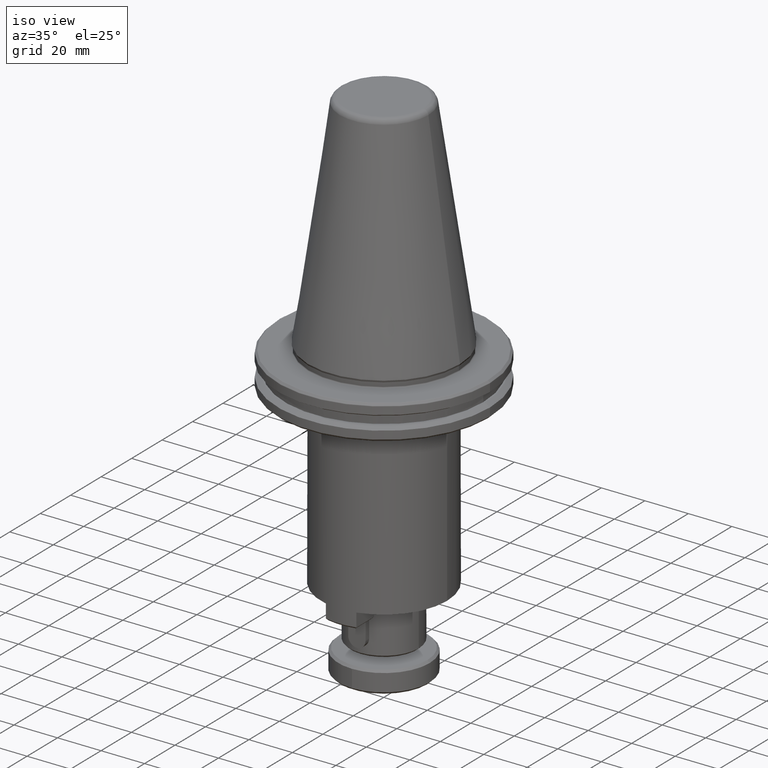
[diagram: clean part render]
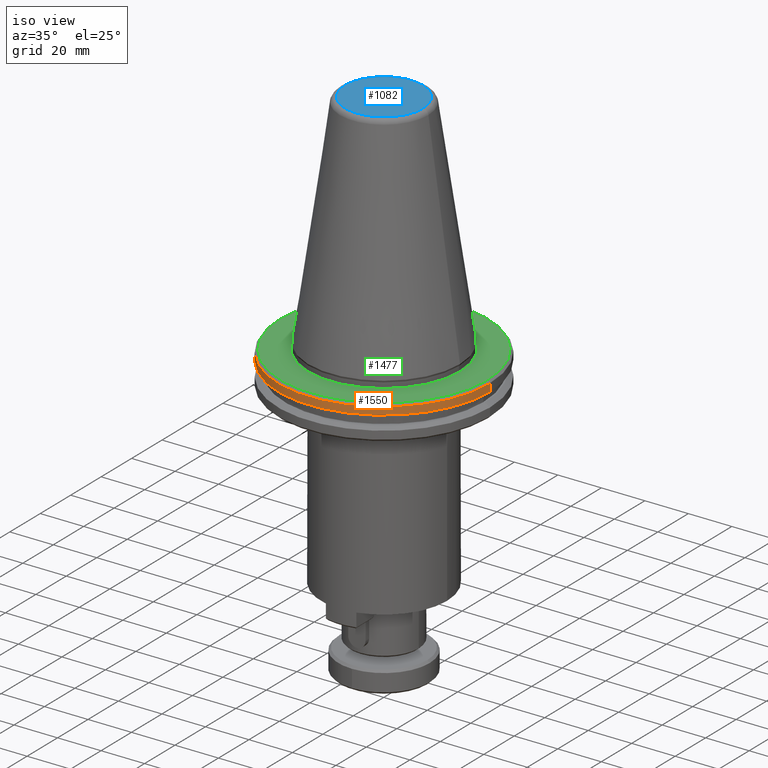
[diagram: same view with three faces highlighted in distinct colors, each labeled with its STEP entity id]
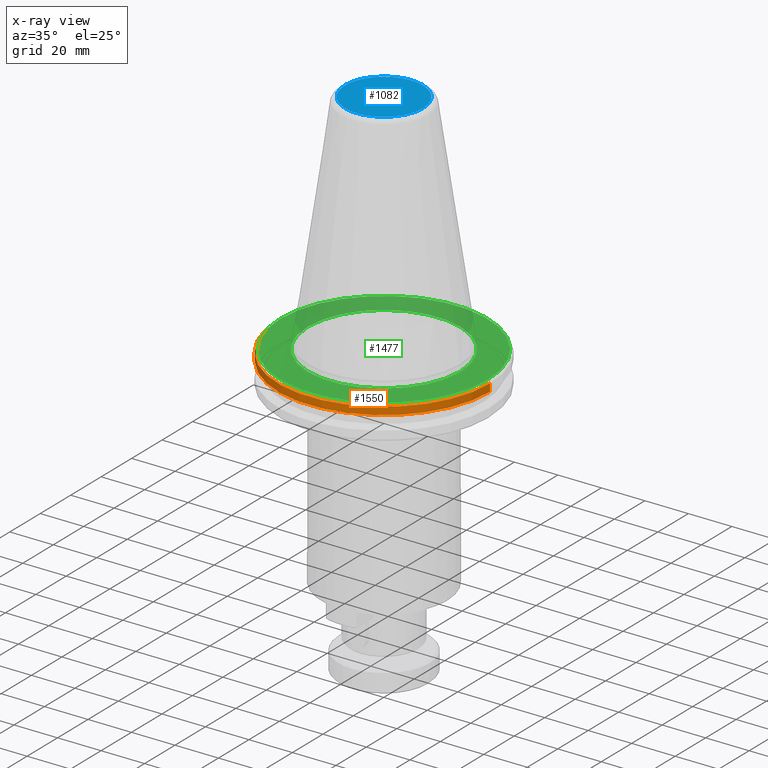
[diagram: x-ray of the same camera — body ghosted, the three highlighted faces saturated]
A machine part, iso view with three faces highlighted in distinct colors.
The next image is the same camera in x-ray (body ghosted, the three faces saturated) — at least one of them is partly hidden behind the body in this view.
Their STEP definitions:

[orange] entity #1550 — the highlighted cylindrical surface (partial cylindrical patch) has radius 48.75 mm, axis along (-0, -0, 1).
#41 = EDGE_CURVE ( 'NONE', #2528, #1391, #630, .T. ) ;
#66 = ORIENTED_EDGE ( 'NONE', *, *, #1876, .F. ) ;
#150 = DIRECTION ( 'NONE',  ( 1.000000000000000000, 0.0000000000000000000, 0.0000000000000000000 ) ) ;
#210 = DIRECTION ( 'NONE',  ( -0.0000000000000000000, -0.0000000000000000000, 1.000000000000000000 ) ) ;
#216 = CARTESIAN_POINT ( 'NONE',  ( 91.78900745422477300, 111.8872747687010000, 199.7495027782804000 ) ) ;
#244 = ORIENTED_EDGE ( 'NONE', *, *, #1423, .T. ) ;
#315 = VECTOR ( 'NONE', #1933, 1000.000000000000000 ) ;
#333 = DIRECTION ( 'NONE',  ( -0.0000000000000000000, -0.0000000000000000000, 1.000000000000000000 ) ) ;
#344 = LINE ( 'NONE', #1815, #315 ) ;
#461 = CARTESIAN_POINT ( 'NONE',  ( 91.78900745422477300, 111.8872747687010000, 93.63381735169856800 ) ) ;
#526 = CARTESIAN_POINT ( 'NONE',  ( 43.03900745430997400, 111.8872747687010000, 93.63381735169856800 ) ) ;
#585 = VERTEX_POINT ( 'NONE', #883 ) ;
#589 = AXIS2_PLACEMENT_3D ( 'NONE', #216, #210, #150 ) ;
#630 = CIRCLE ( 'NONE', #2257, 48.74999999999998600 ) ;
#709 = CARTESIAN_POINT ( 'NONE',  ( 140.5390074541821800, 111.8872747687010000, 199.7495027782804000 ) ) ;
#852 = CARTESIAN_POINT ( 'NONE',  ( 43.03900745422478700, 111.8872747687010000, 90.14709804367184600 ) ) ;
#858 = EDGE_LOOP ( 'NONE', ( #1706, #1395, #244, #66 ) ) ;
#883 = CARTESIAN_POINT ( 'NONE',  ( 140.5390074541395800, 111.8872747687010000, 93.63381735169856800 ) ) ;
#927 = VERTEX_POINT ( 'NONE', #526 ) ;
#971 = AXIS2_PLACEMENT_3D ( 'NONE', #461, #333, #1521 ) ;
#1391 = VERTEX_POINT ( 'NONE', #2573 ) ;
#1395 = ORIENTED_EDGE ( 'NONE', *, *, #41, .T. ) ;
#1423 = EDGE_CURVE ( 'NONE', #1391, #585, #2169, .T. ) ;
#1521 = DIRECTION ( 'NONE',  ( 1.000000000000000000, 0.0000000000000000000, 0.0000000000000000000 ) ) ;
#1550 = ADVANCED_FACE ( 'NONE', ( #1976 ), #1923, .T. ) ;
#1595 = CIRCLE ( 'NONE', #971, 48.74999999991480600 ) ;
#1706 = ORIENTED_EDGE ( 'NONE', *, *, #2658, .F. ) ;
#1811 = CARTESIAN_POINT ( 'NONE',  ( 91.78900745422477300, 111.8872747687010000, 90.14709804367184600 ) ) ;
#1815 = CARTESIAN_POINT ( 'NONE',  ( 43.03900745426737700, 111.8872747687010000, 199.7495027782804000 ) ) ;
#1828 = DIRECTION ( 'NONE',  ( -0.0000000000000000000, -0.0000000000000000000, 1.000000000000000000 ) ) ;
#1834 = DIRECTION ( 'NONE',  ( 1.000000000000000000, 0.0000000000000000000, 0.0000000000000000000 ) ) ;
#1876 = EDGE_CURVE ( 'NONE', #927, #585, #1595, .T. ) ;
#1923 = CYLINDRICAL_SURFACE ( 'NONE', #589, 48.74999999995741000 ) ;
#1933 = DIRECTION ( 'NONE',  ( -0.0000000000000000000, -0.0000000000000000000, 1.000000000000000000 ) ) ;
#1976 = FACE_OUTER_BOUND ( 'NONE', #858, .T. ) ;
#2162 = VECTOR ( 'NONE', #2644, 1000.000000000000000 ) ;
#2169 = LINE ( 'NONE', #709, #2162 ) ;
#2257 = AXIS2_PLACEMENT_3D ( 'NONE', #1811, #1828, #1834 ) ;
#2528 = VERTEX_POINT ( 'NONE', #852 ) ;
#2573 = CARTESIAN_POINT ( 'NONE',  ( 140.5390074542247600, 111.8872747687010000, 90.14709804367184600 ) ) ;
#2644 = DIRECTION ( 'NONE',  ( -0.0000000000000000000, -0.0000000000000000000, 1.000000000000000000 ) ) ;
#2658 = EDGE_CURVE ( 'NONE', #2528, #927, #344, .T. ) ;

[blue] entity #1082 — the highlighted planar face has unit normal (0, 0, -1).
#156 = DIRECTION ( 'NONE',  ( -1.000000000000000000, 0.0000000000000000000, -0.0000000000000000000 ) ) ;
#336 = CARTESIAN_POINT ( 'NONE',  ( 79.11442334026642700, 124.5618588826593100, 199.7495027773960600 ) ) ;
#339 = EDGE_CURVE ( 'NONE', #2079, #817, #426, .T. ) ;
#363 = CARTESIAN_POINT ( 'NONE',  ( 73.86443870282634800, 111.8872747687010000, 199.7495027765116900 ) ) ;
#426 = CIRCLE ( 'NONE', #931, 17.92456875139843200 ) ;
#653 = EDGE_LOOP ( 'NONE', ( #1063, #2086 ) ) ;
#817 = VERTEX_POINT ( 'NONE', #1941 ) ;
#835 = DIRECTION ( 'NONE',  ( 0.0000000000000000000, 0.0000000000000000000, -1.000000000000000000 ) ) ;
#931 = AXIS2_PLACEMENT_3D ( 'NONE', #1835, #1895, #1770 ) ;
#1063 = ORIENTED_EDGE ( 'NONE', *, *, #1984, .T. ) ;
#1082 = ADVANCED_FACE ( 'NONE', ( #2580 ), #1519, .F. ) ;
#1335 = AXIS2_PLACEMENT_3D ( 'NONE', #336, #835, #156 ) ;
#1519 = PLANE ( 'NONE',  #1335 ) ;
#1535 = CIRCLE ( 'NONE', #2197, 17.92456875139843200 ) ;
#1770 = DIRECTION ( 'NONE',  ( 1.000000000000000000, 0.0000000000000000000, 0.0000000000000000000 ) ) ;
#1835 = CARTESIAN_POINT ( 'NONE',  ( 91.78900745422477300, 111.8872747687010000, 199.7495027765116900 ) ) ;
#1840 = DIRECTION ( 'NONE',  ( -0.0000000000000000000, -0.0000000000000000000, 1.000000000000000000 ) ) ;
#1847 = DIRECTION ( 'NONE',  ( 1.000000000000000000, 0.0000000000000000000, 0.0000000000000000000 ) ) ;
#1895 = DIRECTION ( 'NONE',  ( -0.0000000000000000000, -0.0000000000000000000, 1.000000000000000000 ) ) ;
#1941 = CARTESIAN_POINT ( 'NONE',  ( 109.7135762056232100, 111.8872747687010000, 199.7495027765116900 ) ) ;
#1984 = EDGE_CURVE ( 'NONE', #817, #2079, #1535, .T. ) ;
#2035 = CARTESIAN_POINT ( 'NONE',  ( 91.78900745422477300, 111.8872747687010000, 199.7495027765116900 ) ) ;
#2079 = VERTEX_POINT ( 'NONE', #363 ) ;
#2086 = ORIENTED_EDGE ( 'NONE', *, *, #339, .T. ) ;
#2197 = AXIS2_PLACEMENT_3D ( 'NONE', #2035, #1840, #1847 ) ;
#2580 = FACE_OUTER_BOUND ( 'NONE', #653, .T. ) ;

[green] entity #1477 — the highlighted planar face has unit normal (0, 0, -1).
#42 = CARTESIAN_POINT ( 'NONE',  ( 139.3733598465254000, 111.8872747687010000, 94.79950277680299600 ) ) ;
#108 = AXIS2_PLACEMENT_3D ( 'NONE', #324, #443, #246 ) ;
#222 = CARTESIAN_POINT ( 'NONE',  ( 91.78900745422477300, 111.8872747687010000, 94.79950277680299600 ) ) ;
#225 = DIRECTION ( 'NONE',  ( 0.0000000000000000000, 0.0000000000000000000, -1.000000000000000000 ) ) ;
#246 = DIRECTION ( 'NONE',  ( 1.000000000000000000, 0.0000000000000000000, 0.0000000000000000000 ) ) ;
#324 = CARTESIAN_POINT ( 'NONE',  ( 91.78900745422477300, 111.8872747687010000, 94.79950277680299600 ) ) ;
#443 = DIRECTION ( 'NONE',  ( -0.0000000000000000000, -0.0000000000000000000, 1.000000000000000000 ) ) ;
#447 = AXIS2_PLACEMENT_3D ( 'NONE', #559, #569, #2291 ) ;
#559 = CARTESIAN_POINT ( 'NONE',  ( 91.78900745422477300, 111.8872747687010000, 94.79950277828039900 ) ) ;
#569 = DIRECTION ( 'NONE',  ( -0.0000000000000000000, -0.0000000000000000000, 1.000000000000000000 ) ) ;
#674 = VERTEX_POINT ( 'NONE', #42 ) ;
#872 = DIRECTION ( 'NONE',  ( 1.000000000000000000, 0.0000000000000000000, 0.0000000000000000000 ) ) ;
#952 = CIRCLE ( 'NONE', #2470, 35.00019493371400600 ) ;
#1031 = ORIENTED_EDGE ( 'NONE', *, *, #1557, .F. ) ;
#1109 = EDGE_CURVE ( 'NONE', #1989, #674, #2551, .T. ) ;
#1136 = CARTESIAN_POINT ( 'NONE',  ( 126.7892023879387900, 111.8872747687010000, 94.79950277828039900 ) ) ;
#1256 = DIRECTION ( 'NONE',  ( -0.0000000000000000000, -0.0000000000000000000, 1.000000000000000000 ) ) ;
#1297 = DIRECTION ( 'NONE',  ( 1.000000000000000000, 0.0000000000000000000, 0.0000000000000000000 ) ) ;
#1433 = EDGE_LOOP ( 'NONE', ( #1448, #1031 ) ) ;
#1448 = ORIENTED_EDGE ( 'NONE', *, *, #2278, .F. ) ;
#1467 = AXIS2_PLACEMENT_3D ( 'NONE', #222, #2179, #872 ) ;
#1477 = ADVANCED_FACE ( 'NONE', ( #2069, #2074 ), #2491, .F. ) ;
#1557 = EDGE_CURVE ( 'NONE', #2377, #2262, #1946, .T. ) ;
#1651 = CARTESIAN_POINT ( 'NONE',  ( 91.78900745422477300, 111.8872747687010000, 94.79950277828039900 ) ) ;
#1696 = CIRCLE ( 'NONE', #108, 47.58435239230063000 ) ;
#1768 = AXIS2_PLACEMENT_3D ( 'NONE', #2090, #225, #1848 ) ;
#1769 = EDGE_CURVE ( 'NONE', #674, #1989, #1696, .T. ) ;
#1838 = CARTESIAN_POINT ( 'NONE',  ( 56.78881252051075300, 111.8872747687014500, 94.79950277828039900 ) ) ;
#1848 = DIRECTION ( 'NONE',  ( -1.000000000000000000, 0.0000000000000000000, -0.0000000000000000000 ) ) ;
#1946 = CIRCLE ( 'NONE', #447, 35.00019493371400600 ) ;
#1989 = VERTEX_POINT ( 'NONE', #2258 ) ;
#2069 = FACE_OUTER_BOUND ( 'NONE', #2422, .T. ) ;
#2074 = FACE_BOUND ( 'NONE', #1433, .T. ) ;
#2090 = CARTESIAN_POINT ( 'NONE',  ( 58.14178919925860400, 145.5344930236670700, 94.79950277754169000 ) ) ;
#2179 = DIRECTION ( 'NONE',  ( -0.0000000000000000000, -0.0000000000000000000, 1.000000000000000000 ) ) ;
#2183 = ORIENTED_EDGE ( 'NONE', *, *, #1769, .T. ) ;
#2258 = CARTESIAN_POINT ( 'NONE',  ( 44.20465506192415000, 111.8872747687010000, 94.79950277680299600 ) ) ;
#2262 = VERTEX_POINT ( 'NONE', #1136 ) ;
#2278 = EDGE_CURVE ( 'NONE', #2262, #2377, #952, .T. ) ;
#2291 = DIRECTION ( 'NONE',  ( 1.000000000000000000, 0.0000000000000000000, 0.0000000000000000000 ) ) ;
#2377 = VERTEX_POINT ( 'NONE', #1838 ) ;
#2422 = EDGE_LOOP ( 'NONE', ( #2183, #2517 ) ) ;
#2470 = AXIS2_PLACEMENT_3D ( 'NONE', #1651, #1256, #1297 ) ;
#2491 = PLANE ( 'NONE',  #1768 ) ;
#2517 = ORIENTED_EDGE ( 'NONE', *, *, #1109, .T. ) ;
#2551 = CIRCLE ( 'NONE', #1467, 47.58435239230063000 ) ;